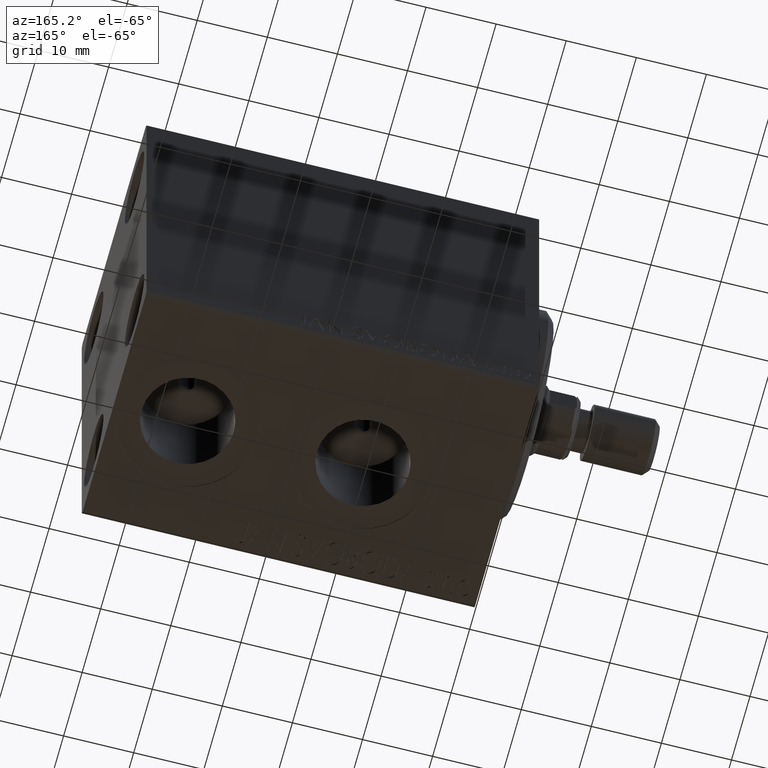
[diagram: clean part render]
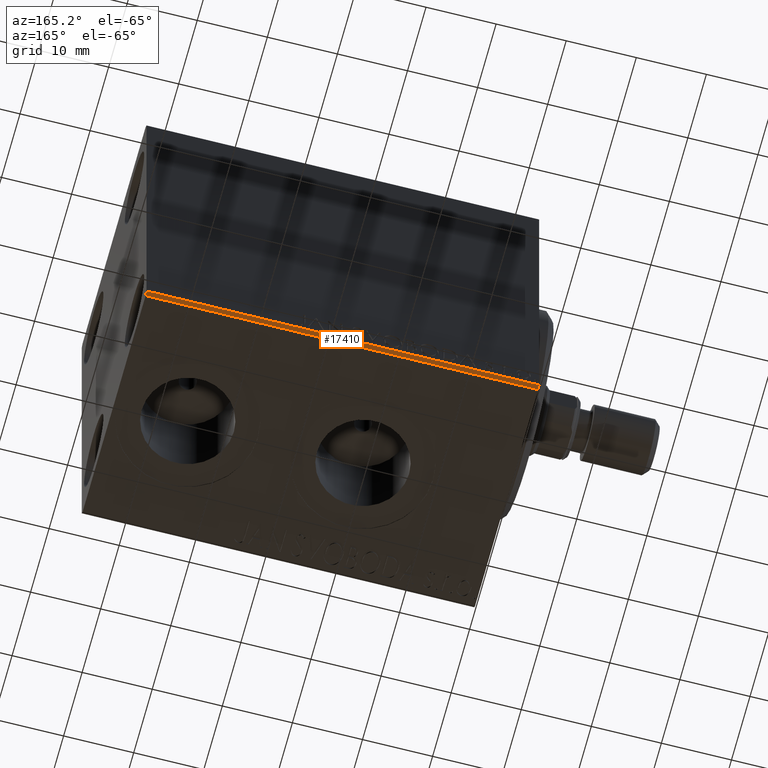
[diagram: same view with one face highlighted and labeled with its STEP entity id]
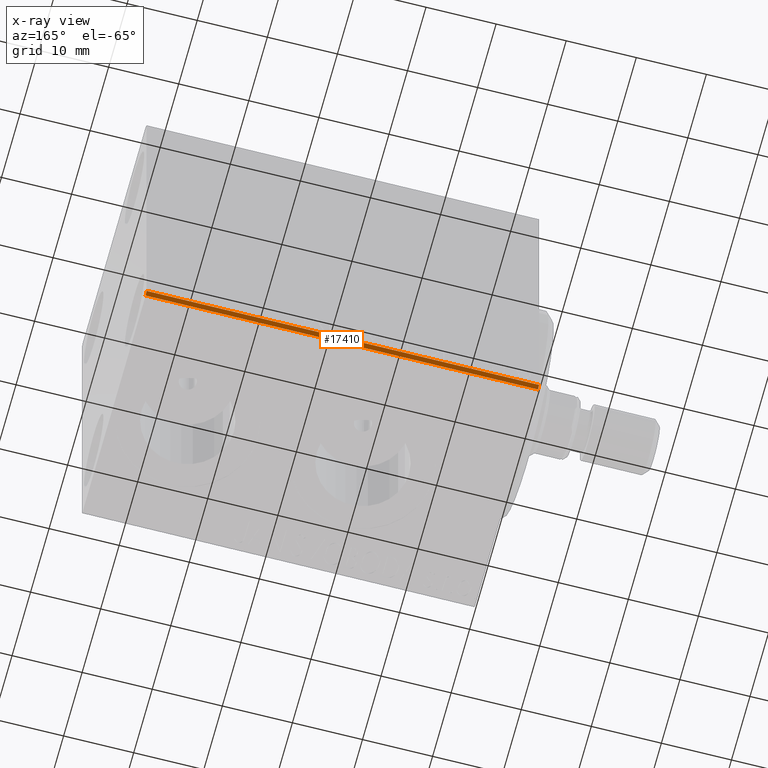
[diagram: x-ray of the same camera — body ghosted, the highlighted face saturated]
A machine part, auxiliary view. The second image highlights one B-rep face of the part: STEP entity #17410.
The next image is the same camera in x-ray: the body ghosted, the highlighted face saturated — about 0% of this face is hidden behind the body in this view.
In plain terms, the highlighted planar face has unit normal (0, -0.7071, 0.7071).
Its self-contained STEP definition (entity closure, byte-faithful):
#2890 = VECTOR ( 'NONE', #39435, 1000.000000000000114 ) ;
#3832 = VERTEX_POINT ( 'NONE', #24725 ) ;
#6712 = VECTOR ( 'NONE', #28388, 1000.000000000000114 ) ;
#7012 = EDGE_CURVE ( 'NONE', #37467, #30150, #36049, .T. ) ;
#7286 = ORIENTED_EDGE ( 'NONE', *, *, #11336, .F. ) ;
#8951 = EDGE_CURVE ( 'NONE', #30150, #17254, #23954, .T. ) ;
#10148 = CARTESIAN_POINT ( 'NONE',  ( 0.000000000000000000, 17.00000000000000711, -27.50000000000000355 ) ) ;
#10839 = CARTESIAN_POINT ( 'NONE',  ( 56.00000000000000000, 22.25000000000000711, -22.25000000000000711 ) ) ;
#11336 = EDGE_CURVE ( 'NONE', #3832, #37467, #20230, .T. ) ;
#11496 = DIRECTION ( 'NONE',  ( -1.000000000000000000, 0.000000000000000000, 0.000000000000000000 ) ) ;
#14019 = ORIENTED_EDGE ( 'NONE', *, *, #17359, .F. ) ;
#15092 = DIRECTION ( 'NONE',  ( 0.000000000000000000, -0.7071067811865475727, 0.7071067811865475727 ) ) ;
#17254 = VERTEX_POINT ( 'NONE', #44171 ) ;
#17359 = EDGE_CURVE ( 'NONE', #17254, #3832, #30893, .T. ) ;
#17410 = ADVANCED_FACE ( 'NONE', ( #43007 ), #32435, .F. ) ;
#19375 = EDGE_LOOP ( 'NONE', ( #14019, #23691, #22034, #7286 ) ) ;
#20230 = LINE ( 'NONE', #30609, #31752 ) ;
#22034 = ORIENTED_EDGE ( 'NONE', *, *, #7012, .F. ) ;
#22511 = CARTESIAN_POINT ( 'NONE',  ( 0.000000000000000000, 17.50000000000000711, -27.00000000000000355 ) ) ;
#23691 = ORIENTED_EDGE ( 'NONE', *, *, #8951, .F. ) ;
#23954 = LINE ( 'NONE', #44004, #38154 ) ;
#24725 = CARTESIAN_POINT ( 'NONE',  ( 56.00000000000000000, 17.50000000000000711, -27.00000000000000355 ) ) ;
#25883 = CARTESIAN_POINT ( 'NONE',  ( 56.00000000000000000, 17.50000000000000711, -27.00000000000000355 ) ) ;
#28388 = DIRECTION ( 'NONE',  ( -0.000000000000000000, 0.7071067811865474617, 0.7071067811865474617 ) ) ;
#30150 = VERTEX_POINT ( 'NONE', #10148 ) ;
#30609 = CARTESIAN_POINT ( 'NONE',  ( 56.00000000000000000, 17.50000000000000711, -27.00000000000000355 ) ) ;
#30893 = LINE ( 'NONE', #10839, #6712 ) ;
#31752 = VECTOR ( 'NONE', #44335, 1000.000000000000000 ) ;
#32435 = PLANE ( 'NONE',  #33311 ) ;
#33311 = AXIS2_PLACEMENT_3D ( 'NONE', #25883, #15092, #11496 ) ;
#33887 = DIRECTION ( 'NONE',  ( 1.000000000000000000, 0.000000000000000000, 0.000000000000000000 ) ) ;
#36049 = LINE ( 'NONE', #22511, #2890 ) ;
#37467 = VERTEX_POINT ( 'NONE', #40214 ) ;
#38154 = VECTOR ( 'NONE', #33887, 1000.000000000000000 ) ;
#39435 = DIRECTION ( 'NONE',  ( 0.000000000000000000, -0.7071067811865474617, -0.7071067811865474617 ) ) ;
#40214 = CARTESIAN_POINT ( 'NONE',  ( 0.000000000000000000, 17.50000000000000711, -27.00000000000000355 ) ) ;
#43007 = FACE_OUTER_BOUND ( 'NONE', #19375, .T. ) ;
#44004 = CARTESIAN_POINT ( 'NONE',  ( 56.00000000000000000, 17.00000000000000711, -27.50000000000000355 ) ) ;
#44171 = CARTESIAN_POINT ( 'NONE',  ( 56.00000000000000000, 17.00000000000000711, -27.50000000000000355 ) ) ;
#44335 = DIRECTION ( 'NONE',  ( -1.000000000000000000, 0.000000000000000000, 0.000000000000000000 ) ) ;